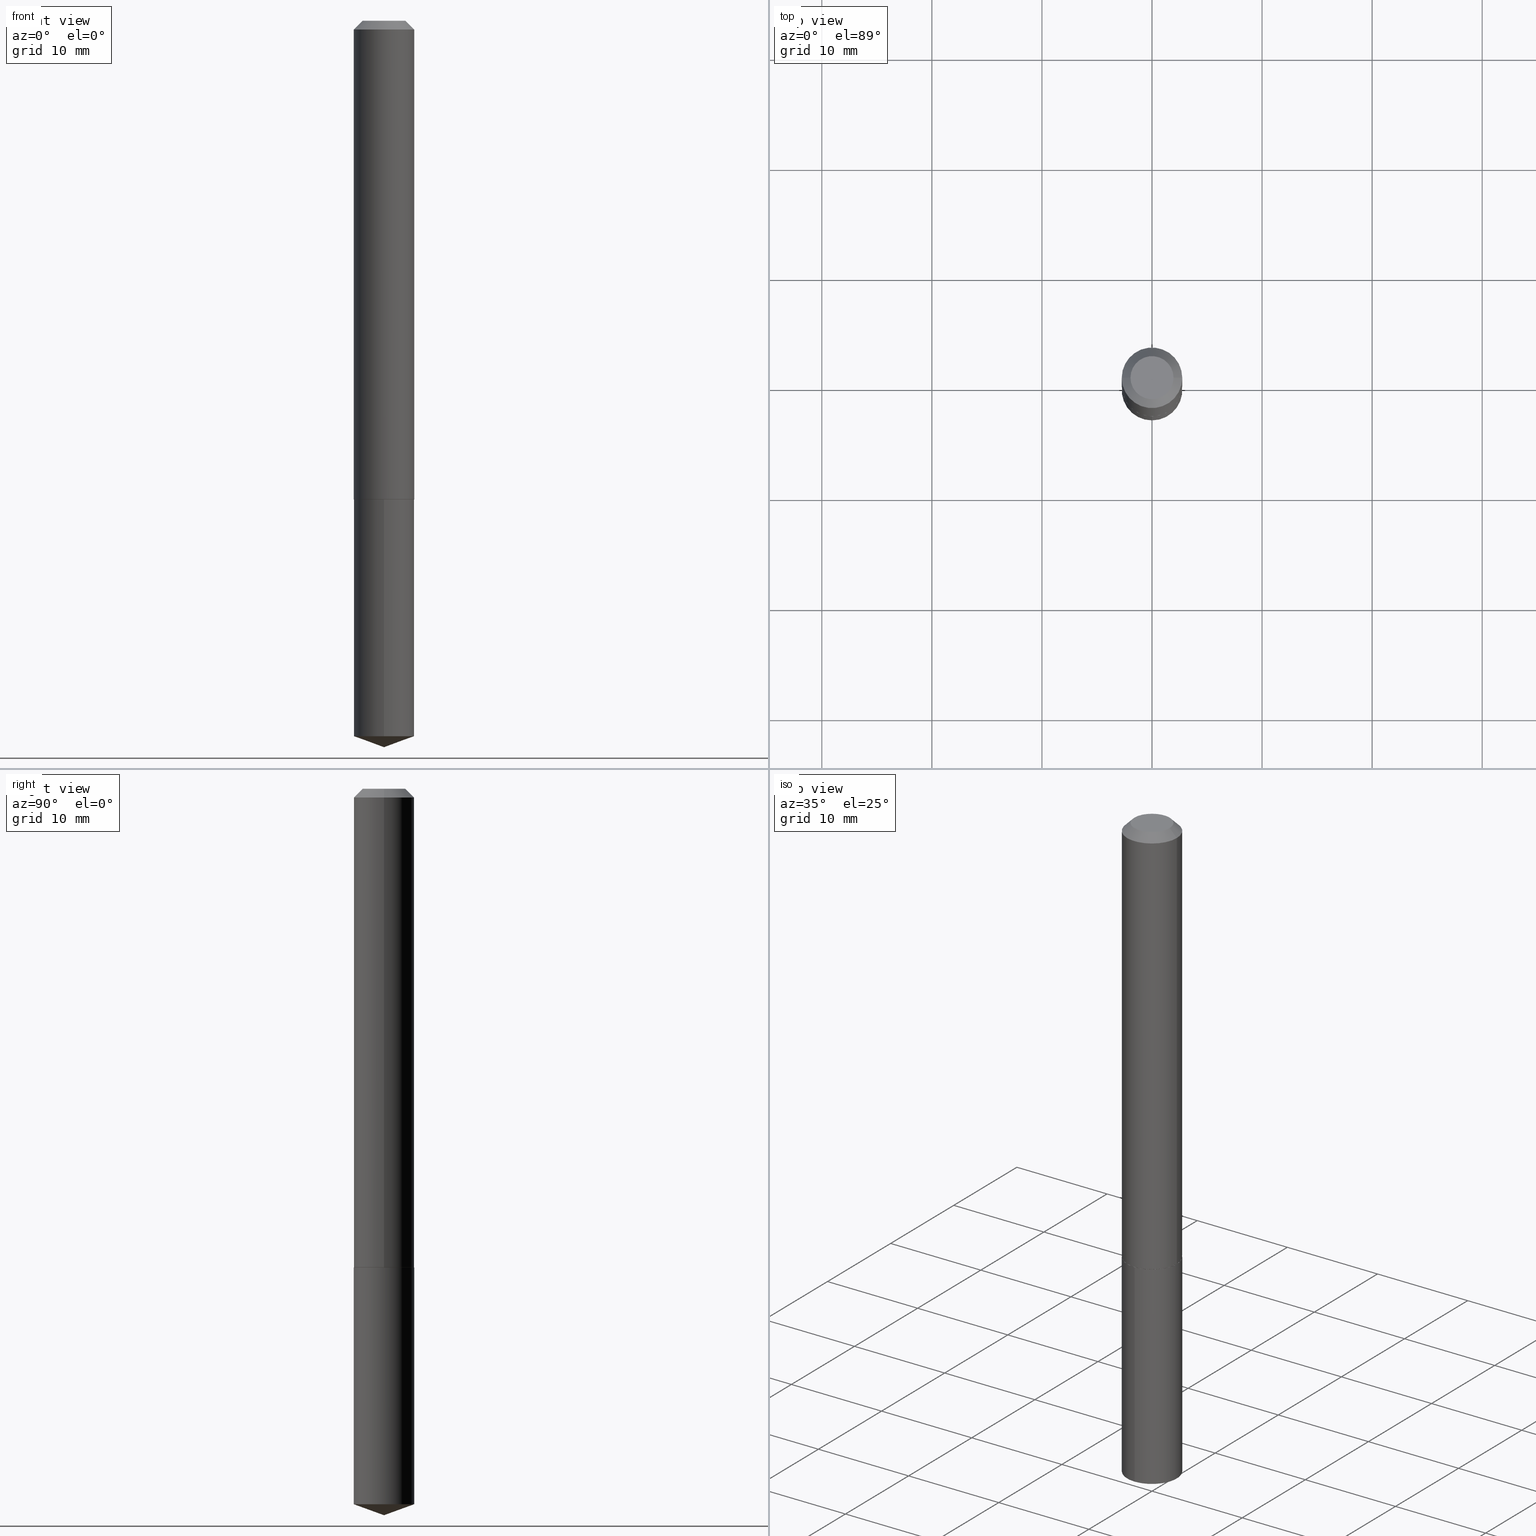
[diagram: canonical four-view strip — front | top / right | iso, engineering-drawing reading convention]
A machine part, canonical four-view strip (front | top / right | iso — engineering-drawing reading convention). The complete STEP part file that produces these views, byte-faithful:
ISO-10303-21;
HEADER;
FILE_DESCRIPTION (( 'STEP AP203' ),
    '1' );
FILE_NAME ('66020.STEP',
    '2024-04-23T12:09:18',
    ( '' ),
    ( '' ),
    'SwSTEP 2.0',
    'SolidWorks 2023',
    '' );
FILE_SCHEMA (( 'CONFIG_CONTROL_DESIGN' ));
ENDSEC;

DATA;
#1 = CIRCLE ( 'NONE', #153, 0.1082499999999999990 ) ;
#2 = SECURITY_CLASSIFICATION ( '', '', #272 ) ;
#3 = VERTEX_POINT ( 'NONE', #166 ) ;
#4 = EDGE_LOOP ( 'NONE', ( #63, #104, #354 ) ) ;
#5 = CALENDAR_DATE ( 2024, 23, 4 ) ;
#6 = CARTESIAN_POINT ( 'NONE',  ( -0.1082499999999999990, -2.274099910508846080E-15, -0.03125000000000021511 ) ) ;
#7 = PERSON_AND_ORGANIZATION ( #355, #197 ) ;
#8 = CC_DESIGN_APPROVAL ( #214, ( #2 ) ) ;
#9 = APPROVAL_ROLE ( '' ) ;
#10 = COORDINATED_UNIVERSAL_TIME_OFFSET ( 5, 0, .BEHIND. ) ;
#11 = VERTEX_POINT ( 'NONE', #194 ) ;
#12 = CARTESIAN_POINT ( 'NONE',  ( 0.1077500000000006508, -6.731576021289585974E-15, -1.712499999999999911 ) ) ;
#13 = FACE_OUTER_BOUND ( 'NONE', #4, .T. ) ;
#14 = APPROVAL ( #39, 'UNSPECIFIED' ) ;
#15 = CIRCLE ( 'NONE', #120, 0.1082499999999999990 ) ;
#16 = DIRECTION ( 'NONE',  ( -6.982962677686265922E-15, -1.000000000000000000, 3.475157955500704437E-15 ) ) ;
#17 = ADVANCED_FACE ( 'NONE', ( #127 ), #210, .T. ) ;
#18 = DIRECTION ( 'NONE',  ( 2.446104833064120536E-29, -3.490570512152038331E-15, -1.000000000000000000 ) ) ;
#19 = CARTESIAN_POINT ( 'NONE',  ( 7.642090019328604414E-31, -1.091087918388490513E-16, -0.03125000000000021511 ) ) ;
#20 = AXIS2_PLACEMENT_3D ( 'NONE', #134, #213, #246 ) ;
#21 = CYLINDRICAL_SURFACE ( 'NONE', #172, 0.1082499999999999990 ) ;
#22 = CALENDAR_DATE ( 2024, 23, 4 ) ;
#23 = EDGE_CURVE ( 'NONE', #198, #330, #136, .T. ) ;
#24 = MANIFOLD_SOLID_BREP ( 'Body-Move/Copy2[2]', #268 ) ;
#25 = AXIS2_PLACEMENT_3D ( 'NONE', #42, #160, #283 ) ;
#26 = AXIS2_PLACEMENT_3D ( 'NONE', #81, #290, #251 ) ;
#27 = CARTESIAN_POINT ( 'NONE',  ( 4.187865330592046310E-29, -5.979161792768886381E-15, -1.712499999999999911 ) ) ;
#28 = ORIENTED_EDGE ( 'NONE', *, *, #304, .T. ) ;
#29 = ADVANCED_FACE ( 'NONE', ( #282 ), #21, .T. ) ;
#30 = ORIENTED_EDGE ( 'NONE', *, *, #244, .F. ) ;
#31 = ORIENTED_EDGE ( 'NONE', *, *, #383, .T. ) ;
#32 = ORIENTED_EDGE ( 'NONE', *, *, #337, .F. ) ;
#33 = ADVANCED_FACE ( 'NONE', ( #138 ), #77, .T. ) ;
#34 = CALENDAR_DATE ( 2024, 23, 4 ) ;
#35 = DIRECTION ( 'NONE',  ( -2.445468806185136597E-29, 3.491481338843145583E-15, 1.000000000000000000 ) ) ;
#36 = PERSON_AND_ORGANIZATION ( #355, #197 ) ;
#37 = ORIENTED_EDGE ( 'NONE', *, *, #270, .T. ) ;
#38 = DIRECTION ( 'NONE',  ( 1.000000000000000000, -6.982962677686266711E-15, 4.876176775795935793E-29 ) ) ;
#39 = APPROVAL_STATUS ( 'not_yet_approved' ) ;
#40 = DIRECTION ( 'NONE',  ( -2.445468806185136597E-29, 3.491481338843145583E-15, 1.000000000000000000 ) ) ;
#41 = DIRECTION ( 'NONE',  ( -6.982962677686265922E-15, -1.000000000000000000, 3.475157955500704437E-15 ) ) ;
#42 = CARTESIAN_POINT ( 'NONE',  ( 4.186642596188953508E-29, -5.977416052099464878E-15, -1.711999999999999966 ) ) ;
#43 = AXIS2_PLACEMENT_3D ( 'NONE', #382, #86, #333 ) ;
#44 = APPROVAL_PERSON_ORGANIZATION ( #100, #54, #264 ) ;
#45 = PLANE ( 'NONE',  #60 ) ;
#46 = CARTESIAN_POINT ( 'NONE',  ( 0.07699999999999998512, -6.900080229630125461E-16, 1.200153863168698194E-18 ) ) ;
#47 = DATE_AND_TIME ( #22, #62 ) ;
#48 = CARTESIAN_POINT ( 'NONE',  ( -0.1082500000000002349, -5.208253540639154363E-15, -1.711999999999999966 ) ) ;
#49 = DIRECTION ( 'NONE',  ( -6.982962677686265922E-15, -1.000000000000000000, 5.047294214622195629E-15 ) ) ;
#50 = AXIS2_PLACEMENT_3D ( 'NONE', #343, #250, #49 ) ;
#51 = CIRCLE ( 'NONE', #231, 0.1082500000000002349 ) ;
#52 = DIRECTION ( 'NONE',  ( -6.982962677686265922E-15, -1.000000000000000000, 2.523647107311097814E-15 ) ) ;
#53 = CARTESIAN_POINT ( 'NONE',  ( 0.1082499999999999990, -8.517577000976173757E-16, -0.03125000000000021511 ) ) ;
#54 = APPROVAL ( #64, 'UNSPECIFIED' ) ;
#55 = EDGE_LOOP ( 'NONE', ( #177, #206, #180, #88 ) ) ;
#56 = EDGE_CURVE ( 'NONE', #369, #11, #1, .T. ) ;
#57 = ORIENTED_EDGE ( 'NONE', *, *, #304, .F. ) ;
#58 = ORIENTED_EDGE ( 'NONE', *, *, #208, .F. ) ;
#59 = ORIENTED_EDGE ( 'NONE', *, *, #61, .T. ) ;
#60 = AXIS2_PLACEMENT_3D ( 'NONE', #162, #18, #133 ) ;
#61 = EDGE_CURVE ( 'NONE', #330, #198, #139, .T. ) ;
#62 = LOCAL_TIME ( 8, 9, 18.00000000000000000, #373 ) ;
#63 = ORIENTED_EDGE ( 'NONE', *, *, #332, .F. ) ;
#64 = APPROVAL_STATUS ( 'not_yet_approved' ) ;
#65 = CARTESIAN_POINT ( 'NONE',  ( -7.559057098594963527E-16, -0.1082500000000059803, -1.712499999999999467 ) ) ;
#66 = CC_DESIGN_PERSON_AND_ORGANIZATION_ASSIGNMENT ( #182, #152, ( #254 ) ) ;
#67 = PERSON_AND_ORGANIZATION ( #355, #197 ) ;
#68 = CC_DESIGN_DATE_AND_TIME_ASSIGNMENT ( #363, #96, ( #2 ) ) ;
#69 = MECHANICAL_CONTEXT ( 'NONE', #284, 'mechanical' ) ;
#70 = CARTESIAN_POINT ( 'NONE',  ( -7.559057098594963527E-16, -0.1082500000000059803, -1.712499999999999467 ) ) ;
#71 = COORDINATED_UNIVERSAL_TIME_OFFSET ( 5, 0, .BEHIND. ) ;
#72 = CARTESIAN_POINT ( 'NONE',  ( -8.994847028221066804E-28, 1.283525777020131888E-13, 36.77167874015748339 ) ) ;
#73 = LINE ( 'NONE', #102, #305 ) ;
#74 = CC_DESIGN_SECURITY_CLASSIFICATION ( #2, ( #341 ) ) ;
#75 = ORIENTED_EDGE ( 'NONE', *, *, #89, .T. ) ;
#76 = ADVANCED_FACE ( 'NONE', ( #310 ), #159, .T. ) ;
#77 = CONICAL_SURFACE ( 'NONE', #112, 108.1684023407339481, 1.221730476396033049 ) ;
#78 = VECTOR ( 'NONE', #85, 39.37007874015748143 ) ;
#79 = ADVANCED_FACE ( 'NONE', ( #131 ), #45, .F. ) ;
#80 = ADVANCED_BREP_SHAPE_REPRESENTATION ( '66020', ( #266, #24, #129 ), #300 ) ;
#81 = CARTESIAN_POINT ( 'NONE',  ( 4.187865330592046310E-29, -5.979161792768886381E-15, -1.712499999999999911 ) ) ;
#82 = FACE_OUTER_BOUND ( 'NONE', #114, .T. ) ;
#83 = EDGE_LOOP ( 'NONE', ( #32, #334, #203, #336 ) ) ;
#84 = AXIS2_PLACEMENT_3D ( 'NONE', #72, #105, #16 ) ;
#85 = DIRECTION ( 'NONE',  ( -2.446104833064120816E-29, 3.490570512152038331E-15, 1.000000000000000000 ) ) ;
#86 = DIRECTION ( 'NONE',  ( 2.438088387897960049E-29, -3.491481338843145188E-15, -1.000000000000000000 ) ) ;
#87 = ORIENTED_EDGE ( 'NONE', *, *, #23, .T. ) ;
#88 = ORIENTED_EDGE ( 'NONE', *, *, #158, .F. ) ;
#89 = EDGE_CURVE ( 'NONE', #233, #239, #276, .T. ) ;
#90 = APPLICATION_CONTEXT ( 'configuration controlled 3d designs of mechanical parts and assemblies' ) ;
#91 = EDGE_LOOP ( 'NONE', ( #28, #111, #144, #228 ) ) ;
#92 = DIRECTION ( 'NONE',  ( 0.000000000000000000, 0.000000000000000000, 1.000000000000000000 ) ) ;
#93 = CLOSED_SHELL ( 'NONE', ( #227, #179, #33, #29, #79 ) ) ;
#94 = VECTOR ( 'NONE', #288, 39.37007874015748143 ) ;
#95 = CARTESIAN_POINT ( 'NONE',  ( 7.691625114603710599E-16, 0.1082499999999940177, -1.712500000000000133 ) ) ;
#96 = DATE_TIME_ROLE ( 'classification_date' ) ;
#97 = PERSON_AND_ORGANIZATION ( #355, #197 ) ;
#98 = ORIENTED_EDGE ( 'NONE', *, *, #374, .T. ) ;
#99 = APPROVAL_PERSON_ORGANIZATION ( #124, #214, #161 ) ;
#100 = PERSON_AND_ORGANIZATION ( #355, #197 ) ;
#101 = DIRECTION ( 'NONE',  ( -2.445468806185136597E-29, 3.491481338843145583E-15, 1.000000000000000000 ) ) ;
#102 = CARTESIAN_POINT ( 'NONE',  ( 7.691625114603501551E-16, 0.1082499999999940177, -1.712500000000000133 ) ) ;
#103 = EDGE_CURVE ( 'NONE', #222, #198, #338, .T. ) ;
#104 = ORIENTED_EDGE ( 'NONE', *, *, #103, .T. ) ;
#105 = DIRECTION ( 'NONE',  ( -2.446104833064120816E-29, 3.490570512152038331E-15, 1.000000000000000000 ) ) ;
#106 = AXIS2_PLACEMENT_3D ( 'NONE', #242, #378, #320 ) ;
#107 = LINE ( 'NONE', #309, #184 ) ;
#108 = DIRECTION ( 'NONE',  ( 0.7071067811865451302, -7.319954787623248157E-15, -0.7071067811865499042 ) ) ;
#109 = DIRECTION ( 'NONE',  ( 1.000000000000000000, -6.982962677686266711E-15, 0.000000000000000000 ) ) ;
#110 = ORIENTED_EDGE ( 'NONE', *, *, #23, .F. ) ;
#111 = ORIENTED_EDGE ( 'NONE', *, *, #201, .T. ) ;
#112 = AXIS2_PLACEMENT_3D ( 'NONE', #348, #324, #41 ) ;
#113 = LOCAL_TIME ( 8, 9, 18.00000000000000000, #71 ) ;
#114 = EDGE_LOOP ( 'NONE', ( #31, #75 ) ) ;
#115 = VERTEX_POINT ( 'NONE', #95 ) ;
#116 = DATE_TIME_ROLE ( 'creation_date' ) ;
#117 = LINE ( 'NONE', #65, #78 ) ;
#118 = DIRECTION ( 'NONE',  ( 6.676917655467972073E-15, 0.9396926207859103153, 0.3420201433256632173 ) ) ;
#119 = CALENDAR_DATE ( 2024, 23, 4 ) ;
#120 = AXIS2_PLACEMENT_3D ( 'NONE', #384, #386, #109 ) ;
#121 = DIRECTION ( 'NONE',  ( -2.445468806185136597E-29, 3.491481338843145583E-15, 1.000000000000000000 ) ) ;
#122 =( NAMED_UNIT ( * ) PLANE_ANGLE_UNIT ( ) SI_UNIT ( $, .RADIAN. ) );
#123 =( LENGTH_UNIT ( ) NAMED_UNIT ( * ) SI_UNIT ( $, .METRE. ) );
#124 = PERSON_AND_ORGANIZATION ( #355, #197 ) ;
#125 = EDGE_LOOP ( 'NONE', ( #59, #232, #295, #260 ) ) ;
#126 = CARTESIAN_POINT ( 'NONE',  ( 4.187865330592046310E-29, -5.979161792768886381E-15, -1.712499999999999911 ) ) ;
#127 = FACE_OUTER_BOUND ( 'NONE', #91, .T. ) ;
#128 = CARTESIAN_POINT ( 'NONE',  ( 4.187865330592046310E-29, -5.979161792768886381E-15, -1.712499999999999911 ) ) ;
#129 = AXIS2_PLACEMENT_3D ( 'NONE', #211, #92, #238 ) ;
#130 = ADVANCED_FACE ( 'NONE', ( #150 ), #291, .T. ) ;
#131 = FACE_OUTER_BOUND ( 'NONE', #207, .T. ) ;
#132 = CC_DESIGN_PERSON_AND_ORGANIZATION_ASSIGNMENT ( #148, #303, ( #2 ) ) ;
#133 = DIRECTION ( 'NONE',  ( 6.982962677686265922E-15, 1.000000000000000000, -3.490570512152038331E-15 ) ) ;
#134 = CARTESIAN_POINT ( 'NONE',  ( 4.187865330592046310E-29, -5.979161792768886381E-15, -1.712499999999999911 ) ) ;
#135 = DIRECTION ( 'NONE',  ( -2.445468806185136597E-29, 3.491481338843145583E-15, 1.000000000000000000 ) ) ;
#136 = CIRCLE ( 'NONE', #106, 0.1082499999999999990 ) ;
#137 = CIRCLE ( 'NONE', #26, 0.1077500000000006508 ) ;
#138 = FACE_OUTER_BOUND ( 'NONE', #301, .T. ) ;
#139 = CIRCLE ( 'NONE', #50, 0.1082499999999999990 ) ;
#140 = CONICAL_SURFACE ( 'NONE', #362, 0.1082499999999999990, 0.7853981633974449483 ) ;
#141 = DIRECTION ( 'NONE',  ( -6.982962677686265922E-15, -1.000000000000000000, 2.523647107311097814E-15 ) ) ;
#142 = ORIENTED_EDGE ( 'NONE', *, *, #332, .T. ) ;
#143 = LINE ( 'NONE', #170, #204 ) ;
#144 = ORIENTED_EDGE ( 'NONE', *, *, #327, .F. ) ;
#145 = ORIENTED_EDGE ( 'NONE', *, *, #103, .F. ) ;
#146 = AXIS2_PLACEMENT_3D ( 'NONE', #247, #101, #216 ) ;
#147 = EDGE_LOOP ( 'NONE', ( #215, #358, #37, #328 ) ) ;
#148 = PERSON_AND_ORGANIZATION ( #355, #197 ) ;
#149 = CARTESIAN_POINT ( 'NONE',  ( 6.355977900160794933E-29, -9.069898418775857095E-15, -2.598399999999999821 ) ) ;
#150 = FACE_OUTER_BOUND ( 'NONE', #365, .T. ) ;
#151 = PRODUCT_RELATED_PRODUCT_CATEGORY ( 'detail', '', ( #254 ) ) ;
#152 = PERSON_AND_ORGANIZATION_ROLE ( 'design_owner' ) ;
#153 = AXIS2_PLACEMENT_3D ( 'NONE', #372, #381, #190 ) ;
#154 = CARTESIAN_POINT ( 'NONE',  ( 7.642090019328604414E-31, -1.091087918388490513E-16, -0.03125000000000021511 ) ) ;
#155 = ORIENTED_EDGE ( 'NONE', *, *, #345, .T. ) ;
#156 = DIRECTION ( 'NONE',  ( -0.7071067811865451302, 2.468850131082231817E-15, -0.7071067811865499042 ) ) ;
#157 = CYLINDRICAL_SURFACE ( 'NONE', #316, 0.1082500000000001239 ) ;
#158 = EDGE_CURVE ( 'NONE', #3, #11, #143, .T. ) ;
#159 = CYLINDRICAL_SURFACE ( 'NONE', #299, 0.1082500000000001239 ) ;
#160 = DIRECTION ( 'NONE',  ( -2.445468806185136597E-29, 3.491481338843145583E-15, 1.000000000000000000 ) ) ;
#161 = APPROVAL_ROLE ( '' ) ;
#162 = CARTESIAN_POINT ( 'NONE',  ( 4.187865330592046310E-29, -5.979161792768886381E-15, -1.712499999999999911 ) ) ;
#163 = DIRECTION ( 'NONE',  ( -2.438088387897960049E-29, 3.491481338843145188E-15, 1.000000000000000000 ) ) ;
#164 = ADVANCED_FACE ( 'NONE', ( #82 ), #389, .F. ) ;
#165 = DIRECTION ( 'NONE',  ( -2.446104833064120816E-29, 3.490570512152038331E-15, 1.000000000000000000 ) ) ;
#166 = CARTESIAN_POINT ( 'NONE',  ( 0.1082500000000002349, -6.733321761959005111E-15, -1.711999999999999966 ) ) ;
#167 = AXIS2_PLACEMENT_3D ( 'NONE', #128, #319, #243 ) ;
#168 = CARTESIAN_POINT ( 'NONE',  ( -0.1077500000000006508, -5.210902767813264775E-15, -1.712499999999999911 ) ) ;
#169 = ADVANCED_FACE ( 'NONE', ( #217 ), #157, .T. ) ;
#170 = CARTESIAN_POINT ( 'NONE',  ( 0.1082500000000001239, -7.559057098595392471E-16, 5.278461359799106297E-30 ) ) ;
#171 = ORIENTED_EDGE ( 'NONE', *, *, #224, .F. ) ;
#172 = AXIS2_PLACEMENT_3D ( 'NONE', #346, #312, #220 ) ;
#173 = CC_DESIGN_APPROVAL ( #14, ( #341 ) ) ;
#174 = SHAPE_DEFINITION_REPRESENTATION ( #225, #80 ) ;
#175 = ORIENTED_EDGE ( 'NONE', *, *, #201, .F. ) ;
#176 = VERTEX_POINT ( 'NONE', #70 ) ;
#177 = ORIENTED_EDGE ( 'NONE', *, *, #327, .T. ) ;
#178 = DIRECTION ( 'NONE',  ( 2.445468806185136597E-29, -3.491481338843145583E-15, -1.000000000000000000 ) ) ;
#179 = ADVANCED_FACE ( 'NONE', ( #13 ), #360, .T. ) ;
#180 = ORIENTED_EDGE ( 'NONE', *, *, #345, .F. ) ;
#181 = COORDINATED_UNIVERSAL_TIME_OFFSET ( 5, 0, .BEHIND. ) ;
#182 = PERSON_AND_ORGANIZATION ( #355, #197 ) ;
#183 = COORDINATED_UNIVERSAL_TIME_OFFSET ( 5, 0, .BEHIND. ) ;
#184 = VECTOR ( 'NONE', #156, 39.37007874015748143 ) ;
#185 = FACE_OUTER_BOUND ( 'NONE', #387, .T. ) ;
#186 = DIMENSIONAL_EXPONENTS ( 1.000000000000000000, 0.000000000000000000, 0.000000000000000000, 0.000000000000000000, 0.000000000000000000, 0.000000000000000000, 0.000000000000000000 ) ;
#187 = DATE_AND_TIME ( #192, #306 ) ;
#188 = EDGE_CURVE ( 'NONE', #273, #3, #352, .T. ) ;
#189 = CARTESIAN_POINT ( 'NONE',  ( -2.934938834991140479E-47, 4.190314816979034009E-33, 1.200153863164406066E-18 ) ) ;
#190 = DIRECTION ( 'NONE',  ( 1.000000000000000000, -6.982962677686266711E-15, 0.000000000000000000 ) ) ;
#191 = CARTESIAN_POINT ( 'NONE',  ( 7.691625114603707641E-16, 0.1082499999999910478, -2.559000222140684233 ) ) ;
#192 = CALENDAR_DATE ( 2024, 23, 4 ) ;
#193 = CARTESIAN_POINT ( 'NONE',  ( 0.1082500000000002349, -6.733321761959005111E-15, -1.711999999999999966 ) ) ;
#194 = CARTESIAN_POINT ( 'NONE',  ( 0.1082499999999999990, -8.650145016983874602E-16, -0.03125000000000021511 ) ) ;
#195 = CIRCLE ( 'NONE', #25, 0.1082500000000002349 ) ;
#196 = CYLINDRICAL_SURFACE ( 'NONE', #167, 0.1082499999999999990 ) ;
#197 = ORGANIZATION ( 'UNSPECIFIED', 'UNSPECIFIED', '' ) ;
#198 = VERTEX_POINT ( 'NONE', #191 ) ;
#199 = CARTESIAN_POINT ( 'NONE',  ( 4.187865330592046310E-29, -5.979161792768886381E-15, -1.712499999999999911 ) ) ;
#200 = LINE ( 'NONE', #325, #94 ) ;
#201 = EDGE_CURVE ( 'NONE', #331, #258, #321, .T. ) ;
#202 = CARTESIAN_POINT ( 'NONE',  ( -0.1082500000000001239, 7.691625114603093316E-16, -5.324747235200940914E-30 ) ) ;
#203 = ORIENTED_EDGE ( 'NONE', *, *, #158, .T. ) ;
#204 = VECTOR ( 'NONE', #293, 39.37007874015748143 ) ;
#205 = LOCAL_TIME ( 8, 9, 18.00000000000000000, #183 ) ;
#206 = ORIENTED_EDGE ( 'NONE', *, *, #337, .T. ) ;
#207 = EDGE_LOOP ( 'NONE', ( #357, #359 ) ) ;
#208 = EDGE_CURVE ( 'NONE', #198, #115, #73, .T. ) ;
#209 = EDGE_LOOP ( 'NONE', ( #58, #87, #98, #298 ) ) ;
#210 = CONICAL_SURFACE ( 'NONE', #146, 0.1082500000000002349, 0.7853981633971409693 ) ;
#211 = CARTESIAN_POINT ( 'NONE',  ( 0.000000000000000000, 0.000000000000000000, 0.000000000000000000 ) ) ;
#212 =( NAMED_UNIT ( * ) SI_UNIT ( $, .STERADIAN. ) SOLID_ANGLE_UNIT ( ) );
#213 = DIRECTION ( 'NONE',  ( -2.445468806185136597E-29, 3.491481338843145583E-15, 1.000000000000000000 ) ) ;
#214 = APPROVAL ( #364, 'UNSPECIFIED' ) ;
#215 = ORIENTED_EDGE ( 'NONE', *, *, #323, .F. ) ;
#216 = DIRECTION ( 'NONE',  ( 1.000000000000000000, -6.982962677686270655E-15, 0.000000000000000000 ) ) ;
#217 = FACE_OUTER_BOUND ( 'NONE', #83, .T. ) ;
#218 = AXIS2_PLACEMENT_3D ( 'NONE', #199, #163, #281 ) ;
#219 = PLANE ( 'NONE',  #218 ) ;
#220 = DIRECTION ( 'NONE',  ( -6.982962677686265922E-15, -1.000000000000000000, 2.523647107311097814E-15 ) ) ;
#221 = DIRECTION ( 'NONE',  ( 0.7071067811863300800, -2.468850131079980408E-15, 0.7071067811867647324 ) ) ;
#222 = VERTEX_POINT ( 'NONE', #313 ) ;
#223 = CARTESIAN_POINT ( 'NONE',  ( -7.559057098594756451E-16, -0.1082500000000089085, -2.559000222140683345 ) ) ;
#224 = EDGE_CURVE ( 'NONE', #258, #3, #195, .T. ) ;
#225 = PRODUCT_DEFINITION_SHAPE ( 'NONE', 'NONE',  #339 ) ;
#226 = APPROVAL_PERSON_ORGANIZATION ( #7, #14, #9 ) ;
#227 = ADVANCED_FACE ( 'NONE', ( #278 ), #196, .T. ) ;
#228 = ORIENTED_EDGE ( 'NONE', *, *, #188, .F. ) ;
#229 = CC_DESIGN_DATE_AND_TIME_ASSIGNMENT ( #187, #116, ( #339 ) ) ;
#230 = ORIENTED_EDGE ( 'NONE', *, *, #270, .F. ) ;
#231 = AXIS2_PLACEMENT_3D ( 'NONE', #259, #257, #388 ) ;
#232 = ORIENTED_EDGE ( 'NONE', *, *, #208, .T. ) ;
#233 = VERTEX_POINT ( 'NONE', #46 ) ;
#234 = PERSON_AND_ORGANIZATION_ROLE ( 'design_supplier' ) ;
#235 = VECTOR ( 'NONE', #289, 39.37007874015748143 ) ;
#236 = APPROVAL_DATE_TIME ( #308, #14 ) ;
#237 = ADVANCED_FACE ( 'NONE', ( #185 ), #219, .F. ) ;
#238 = DIRECTION ( 'NONE',  ( 1.000000000000000000, 0.000000000000000000, 0.000000000000000000 ) ) ;
#239 = VERTEX_POINT ( 'NONE', #370 ) ;
#240 = DIRECTION ( 'NONE',  ( -2.446104833064120816E-29, 3.490570512152038331E-15, 1.000000000000000000 ) ) ;
#241 = CC_DESIGN_PERSON_AND_ORGANIZATION_ASSIGNMENT ( #67, #311, ( #341 ) ) ;
#242 = CARTESIAN_POINT ( 'NONE',  ( 6.258493615160226156E-29, -8.933930506703307984E-15, -2.559000222140683789 ) ) ;
#243 = DIRECTION ( 'NONE',  ( -6.982962677686265922E-15, -1.000000000000000000, 2.523647107311097814E-15 ) ) ;
#244 = EDGE_CURVE ( 'NONE', #331, #273, #329, .T. ) ;
#245 = CARTESIAN_POINT ( 'NONE',  ( -2.934938834991140479E-47, 4.190314816979034009E-33, 1.200153863164406066E-18 ) ) ;
#246 = DIRECTION ( 'NONE',  ( 1.000000000000000000, -6.982962677686265922E-15, 0.000000000000000000 ) ) ;
#247 = CARTESIAN_POINT ( 'NONE',  ( 4.186642596188953508E-29, -5.977416052099464878E-15, -1.711999999999999966 ) ) ;
#248 = DIRECTION ( 'NONE',  ( 2.445468806185136597E-29, -3.491481338843145583E-15, -1.000000000000000000 ) ) ;
#249 = CC_DESIGN_APPROVAL ( #54, ( #339 ) ) ;
#250 = DIRECTION ( 'NONE',  ( -2.446104833064120816E-29, 3.490570512152038331E-15, 1.000000000000000000 ) ) ;
#251 = DIRECTION ( 'NONE',  ( 1.000000000000000000, -6.982962677686265922E-15, 0.000000000000000000 ) ) ;
#252 = ADVANCED_FACE ( 'NONE', ( #375 ), #317, .T. ) ;
#253 = LINE ( 'NONE', #202, #235 ) ;
#254 = PRODUCT ( '66020', '66020', '', ( #69 ) ) ;
#255 = VECTOR ( 'NONE', #221, 39.37007874015748854 ) ;
#256 = AXIS2_PLACEMENT_3D ( 'NONE', #27, #286, #141 ) ;
#257 = DIRECTION ( 'NONE',  ( -2.445468806185136597E-29, 3.491481338843145583E-15, 1.000000000000000000 ) ) ;
#258 = VERTEX_POINT ( 'NONE', #344 ) ;
#259 = CARTESIAN_POINT ( 'NONE',  ( 4.186642596188953508E-29, -5.977416052099464878E-15, -1.711999999999999966 ) ) ;
#260 = ORIENTED_EDGE ( 'NONE', *, *, #374, .F. ) ;
#261 = FACE_OUTER_BOUND ( 'NONE', #296, .T. ) ;
#262 = LOCAL_TIME ( 8, 9, 18.00000000000000000, #10 ) ;
#263 = ORIENTED_EDGE ( 'NONE', *, *, #244, .T. ) ;
#264 = APPROVAL_ROLE ( '' ) ;
#265 = DATE_AND_TIME ( #5, #113 ) ;
#266 = MANIFOLD_SOLID_BREP ( 'Body-Move/Copy2[1]', #93 ) ;
#267 = CARTESIAN_POINT ( 'NONE',  ( 4.186642596188953508E-29, -5.977416052099464878E-15, -1.711999999999999966 ) ) ;
#268 = CLOSED_SHELL ( 'NONE', ( #351, #76, #17, #237, #130, #169, #252, #164 ) ) ;
#269 = APPROVAL_DATE_TIME ( #265, #54 ) ;
#270 = EDGE_CURVE ( 'NONE', #239, #369, #107, .T. ) ;
#271 = DIRECTION ( 'NONE',  ( -1.000000000000000000, 6.982962677686266711E-15, 0.000000000000000000 ) ) ;
#272 = SECURITY_CLASSIFICATION_LEVEL ( 'unclassified' ) ;
#273 = VERTEX_POINT ( 'NONE', #12 ) ;
#274 = DIRECTION ( 'NONE',  ( -0.7071067811863300800, 7.493145998869566877E-15, 0.7071067811867647324 ) ) ;
#275 = LENGTH_MEASURE_WITH_UNIT ( LENGTH_MEASURE( 0.02539999999999999897 ), #123 );
#276 = CIRCLE ( 'NONE', #349, 0.07699999999999998512 ) ;
#277 = CARTESIAN_POINT ( 'NONE',  ( 0.000000000000000000, 0.000000000000000000, 0.000000000000000000 ) ) ;
#278 = FACE_OUTER_BOUND ( 'NONE', #125, .T. ) ;
#279 = DIRECTION ( 'NONE',  ( 1.000000000000000000, -6.982962677686266711E-15, 4.876176775795935793E-29 ) ) ;
#280 = APPROVAL_DATE_TIME ( #47, #214 ) ;
#281 = DIRECTION ( 'NONE',  ( 1.000000000000000000, -6.982962677686265922E-15, 4.876176775795935793E-29 ) ) ;
#282 = FACE_OUTER_BOUND ( 'NONE', #209, .T. ) ;
#283 = DIRECTION ( 'NONE',  ( 1.000000000000000000, -6.982962677686270655E-15, 0.000000000000000000 ) ) ;
#284 = APPLICATION_CONTEXT ( 'configuration controlled 3d designs of mechanical parts and assemblies' ) ;
#285 = ORIENTED_EDGE ( 'NONE', *, *, #188, .T. ) ;
#286 = DIRECTION ( 'NONE',  ( -2.446104833064120816E-29, 3.490570512152038331E-15, 1.000000000000000000 ) ) ;
#287 = CIRCLE ( 'NONE', #377, 0.07699999999999998512 ) ;
#288 = DIRECTION ( 'NONE',  ( -6.561838499445207162E-15, -0.9396926207859079838, 0.3420201433256698231 ) ) ;
#289 = DIRECTION ( 'NONE',  ( -2.445468806185136877E-29, 3.491481338843145188E-15, 1.000000000000000000 ) ) ;
#290 = DIRECTION ( 'NONE',  ( -2.445468806185136597E-29, 3.491481338843145583E-15, 1.000000000000000000 ) ) ;
#291 = CONICAL_SURFACE ( 'NONE', #376, 0.1082500000000002349, 0.7853981633971409693 ) ;
#292 = AXIS2_PLACEMENT_3D ( 'NONE', #19, #248, #379 ) ;
#293 = DIRECTION ( 'NONE',  ( -2.445468806185136877E-29, 3.491481338843145188E-15, 1.000000000000000000 ) ) ;
#294 = ORIENTED_EDGE ( 'NONE', *, *, #89, .F. ) ;
#295 = ORIENTED_EDGE ( 'NONE', *, *, #314, .F. ) ;
#296 = EDGE_LOOP ( 'NONE', ( #294, #390, #155, #230 ) ) ;
#297 = EDGE_CURVE ( 'NONE', #115, #176, #367, .T. ) ;
#298 = ORIENTED_EDGE ( 'NONE', *, *, #297, .F. ) ;
#299 = AXIS2_PLACEMENT_3D ( 'NONE', #277, #318, #279 ) ;
#300 =( GEOMETRIC_REPRESENTATION_CONTEXT ( 3 ) GLOBAL_UNCERTAINTY_ASSIGNED_CONTEXT ( ( #371 ) ) GLOBAL_UNIT_ASSIGNED_CONTEXT ( ( #380, #122, #212 ) ) REPRESENTATION_CONTEXT ( 'NONE', 'WORKASPACE' ) );
#301 = EDGE_LOOP ( 'NONE', ( #145, #142, #110 ) ) ;
#302 = DIRECTION ( 'NONE',  ( 1.000000000000000000, -6.982962677686266711E-15, 4.876247235587762773E-29 ) ) ;
#303 = PERSON_AND_ORGANIZATION_ROLE ( 'classification_officer' ) ;
#304 = EDGE_CURVE ( 'NONE', #273, #331, #137, .T. ) ;
#305 = VECTOR ( 'NONE', #165, 39.37007874015748143 ) ;
#306 = LOCAL_TIME ( 8, 9, 18.00000000000000000, #181 ) ;
#307 = CC_DESIGN_PERSON_AND_ORGANIZATION_ASSIGNMENT ( #97, #340, ( #339 ) ) ;
#308 = DATE_AND_TIME ( #119, #205 ) ;
#309 = CARTESIAN_POINT ( 'NONE',  ( -0.1082499999999999990, 6.467969180206892589E-16, -0.03125000000000021511 ) ) ;
#310 = FACE_OUTER_BOUND ( 'NONE', #55, .T. ) ;
#311 = PERSON_AND_ORGANIZATION_ROLE ( 'creator' ) ;
#312 = DIRECTION ( 'NONE',  ( -2.446104833064120816E-29, 3.490570512152038331E-15, 1.000000000000000000 ) ) ;
#313 = CARTESIAN_POINT ( 'NONE',  ( 6.355958798233809638E-29, -9.069898418775857095E-15, -2.598399999999999821 ) ) ;
#314 = EDGE_CURVE ( 'NONE', #176, #115, #350, .T. ) ;
#315 = VECTOR ( 'NONE', #274, 39.37007874015748854 ) ;
#316 = AXIS2_PLACEMENT_3D ( 'NONE', #347, #135, #38 ) ;
#317 = CONICAL_SURFACE ( 'NONE', #292, 0.1082499999999999990, 0.7853981633974449483 ) ;
#318 = DIRECTION ( 'NONE',  ( -2.445468806185136597E-29, 3.491481338843145583E-15, 1.000000000000000000 ) ) ;
#319 = DIRECTION ( 'NONE',  ( -2.446104833064120816E-29, 3.490570512152038331E-15, 1.000000000000000000 ) ) ;
#320 = DIRECTION ( 'NONE',  ( -6.982962677686265922E-15, -1.000000000000000000, 5.047294214622195629E-15 ) ) ;
#321 = LINE ( 'NONE', #48, #315 ) ;
#322 = DESIGN_CONTEXT ( 'detailed design', #90, 'design' ) ;
#323 = EDGE_CURVE ( 'NONE', #233, #11, #353, .T. ) ;
#324 = DIRECTION ( 'NONE',  ( -2.446104833064120816E-29, 3.490570512152038331E-15, 1.000000000000000000 ) ) ;
#325 = CARTESIAN_POINT ( 'NONE',  ( 6.353780406173288904E-29, -9.073018000192897421E-15, -2.598399999999999821 ) ) ;
#326 = DIRECTION ( 'NONE',  ( 1.000000000000000000, -6.982962677686270655E-15, 0.000000000000000000 ) ) ;
#327 = EDGE_CURVE ( 'NONE', #3, #258, #51, .T. ) ;
#328 = ORIENTED_EDGE ( 'NONE', *, *, #56, .T. ) ;
#329 = CIRCLE ( 'NONE', #20, 0.1077500000000006508 ) ;
#330 = VERTEX_POINT ( 'NONE', #223 ) ;
#331 = VERTEX_POINT ( 'NONE', #168 ) ;
#332 = EDGE_CURVE ( 'NONE', #222, #330, #200, .T. ) ;
#333 = DIRECTION ( 'NONE',  ( -1.000000000000000000, 6.982962677686265922E-15, -4.876176775795935793E-29 ) ) ;
#334 = ORIENTED_EDGE ( 'NONE', *, *, #224, .T. ) ;
#335 = CC_DESIGN_PERSON_AND_ORGANIZATION_ASSIGNMENT ( #36, #234, ( #341 ) ) ;
#336 = ORIENTED_EDGE ( 'NONE', *, *, #56, .F. ) ;
#337 = EDGE_CURVE ( 'NONE', #258, #369, #253, .T. ) ;
#338 = LINE ( 'NONE', #149, #366 ) ;
#339 = PRODUCT_DEFINITION ( 'UNKNOWN', '', #341, #322 ) ;
#340 = PERSON_AND_ORGANIZATION_ROLE ( 'creator' ) ;
#341 = PRODUCT_DEFINITION_FORMATION_WITH_SPECIFIED_SOURCE ( 'ANY', '', #254, .NOT_KNOWN. ) ;
#342 = APPLICATION_PROTOCOL_DEFINITION ( 'international standard', 'config_control_design', 1994, #284 ) ;
#343 = CARTESIAN_POINT ( 'NONE',  ( 6.258493615160226156E-29, -8.933930506703307984E-15, -2.559000222140683789 ) ) ;
#344 = CARTESIAN_POINT ( 'NONE',  ( -0.1082500000000002349, -5.208253540639154363E-15, -1.711999999999999966 ) ) ;
#345 = EDGE_CURVE ( 'NONE', #11, #369, #15, .T. ) ;
#346 = CARTESIAN_POINT ( 'NONE',  ( 4.187865330592046310E-29, -5.979161792768886381E-15, -1.712499999999999911 ) ) ;
#347 = CARTESIAN_POINT ( 'NONE',  ( 0.000000000000000000, 0.000000000000000000, 0.000000000000000000 ) ) ;
#348 = CARTESIAN_POINT ( 'NONE',  ( -8.994847028221066804E-28, 1.283525777020131888E-13, 36.77167874015748339 ) ) ;
#349 = AXIS2_PLACEMENT_3D ( 'NONE', #245, #35, #302 ) ;
#350 = CIRCLE ( 'NONE', #256, 0.1082499999999999990 ) ;
#351 = ADVANCED_FACE ( 'NONE', ( #261 ), #140, .T. ) ;
#352 = LINE ( 'NONE', #193, #255 ) ;
#353 = LINE ( 'NONE', #53, #356 ) ;
#354 = ORIENTED_EDGE ( 'NONE', *, *, #61, .F. ) ;
#355 = PERSON ( 'UNSPECIFIED', 'UNSPECIFIED', 'UNSPECIFIED', ('UNSPECIFIED'), ('UNSPECIFIED'), ('UNSPECIFIED') ) ;
#356 = VECTOR ( 'NONE', #108, 39.37007874015748143 ) ;
#357 = ORIENTED_EDGE ( 'NONE', *, *, #314, .T. ) ;
#358 = ORIENTED_EDGE ( 'NONE', *, *, #383, .F. ) ;
#359 = ORIENTED_EDGE ( 'NONE', *, *, #297, .T. ) ;
#360 = CONICAL_SURFACE ( 'NONE', #84, 108.1684023407339481, 1.221730476396033049 ) ;
#361 = AXIS2_PLACEMENT_3D ( 'NONE', #126, #240, #52 ) ;
#362 = AXIS2_PLACEMENT_3D ( 'NONE', #154, #178, #271 ) ;
#363 = DATE_AND_TIME ( #34, #262 ) ;
#364 = APPROVAL_STATUS ( 'not_yet_approved' ) ;
#365 = EDGE_LOOP ( 'NONE', ( #175, #263, #285, #171 ) ) ;
#366 = VECTOR ( 'NONE', #118, 39.37007874015748854 ) ;
#367 = CIRCLE ( 'NONE', #361, 0.1082499999999999990 ) ;
#368 = APPLICATION_PROTOCOL_DEFINITION ( 'international standard', 'config_control_design', 1994, #90 ) ;
#369 = VERTEX_POINT ( 'NONE', #6 ) ;
#370 = CARTESIAN_POINT ( 'NONE',  ( -0.07699999999999998512, 5.922425221012658919E-16, 1.200153863160455214E-18 ) ) ;
#371 = UNCERTAINTY_MEASURE_WITH_UNIT (LENGTH_MEASURE( 1.000000000000000082E-05 ), #380, 'distance_accuracy_value', 'NONE');
#372 = CARTESIAN_POINT ( 'NONE',  ( 7.642090019328604414E-31, -1.091087918388490513E-16, -0.03125000000000021511 ) ) ;
#373 = COORDINATED_UNIVERSAL_TIME_OFFSET ( 5, 0, .BEHIND. ) ;
#374 = EDGE_CURVE ( 'NONE', #330, #176, #117, .T. ) ;
#375 = FACE_OUTER_BOUND ( 'NONE', #147, .T. ) ;
#376 = AXIS2_PLACEMENT_3D ( 'NONE', #267, #121, #326 ) ;
#377 = AXIS2_PLACEMENT_3D ( 'NONE', #189, #40, #385 ) ;
#378 = DIRECTION ( 'NONE',  ( -2.446104833064120816E-29, 3.490570512152038331E-15, 1.000000000000000000 ) ) ;
#379 = DIRECTION ( 'NONE',  ( -1.000000000000000000, 6.982962677686266711E-15, 0.000000000000000000 ) ) ;
#380 =( CONVERSION_BASED_UNIT ( 'INCH', #275 ) LENGTH_UNIT ( ) NAMED_UNIT ( #186 ) );
#381 = DIRECTION ( 'NONE',  ( -2.445468806185136597E-29, 3.491481338843145583E-15, 1.000000000000000000 ) ) ;
#382 = CARTESIAN_POINT ( 'NONE',  ( -1.467469417495570240E-47, 2.095157408489517005E-33, 6.000769315822030332E-19 ) ) ;
#383 = EDGE_CURVE ( 'NONE', #239, #233, #287, .T. ) ;
#384 = CARTESIAN_POINT ( 'NONE',  ( 7.642090019328604414E-31, -1.091087918388490513E-16, -0.03125000000000021511 ) ) ;
#385 = DIRECTION ( 'NONE',  ( 1.000000000000000000, -6.982962677686266711E-15, 4.876247235587762773E-29 ) ) ;
#386 = DIRECTION ( 'NONE',  ( -2.445468806185136597E-29, 3.491481338843145583E-15, 1.000000000000000000 ) ) ;
#387 = EDGE_LOOP ( 'NONE', ( #57, #30 ) ) ;
#388 = DIRECTION ( 'NONE',  ( 1.000000000000000000, -6.982962677686270655E-15, 0.000000000000000000 ) ) ;
#389 = PLANE ( 'NONE',  #43 ) ;
#390 = ORIENTED_EDGE ( 'NONE', *, *, #323, .T. ) ;
ENDSEC;
END-ISO-10303-21;
